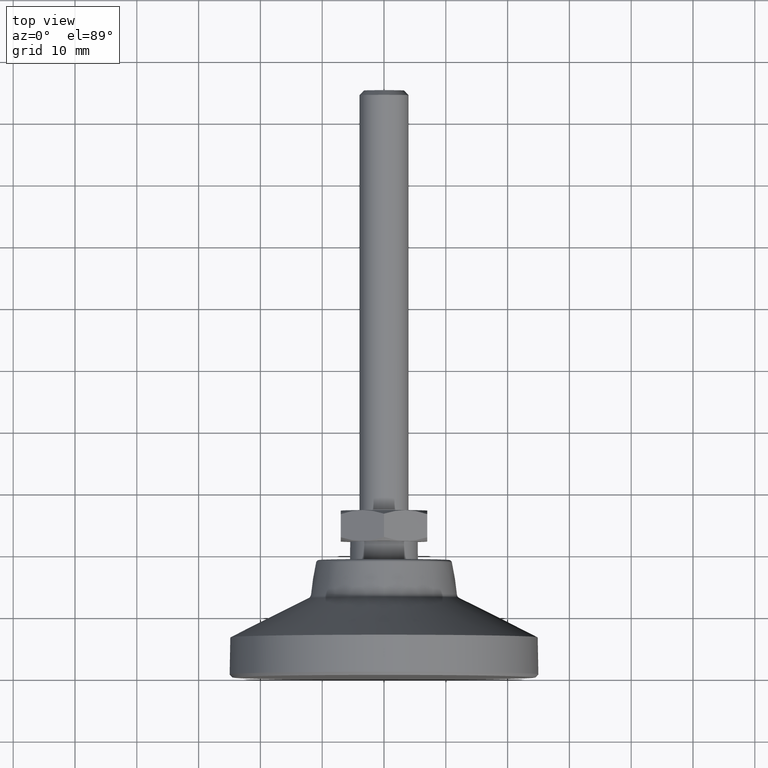
[diagram: clean part render]
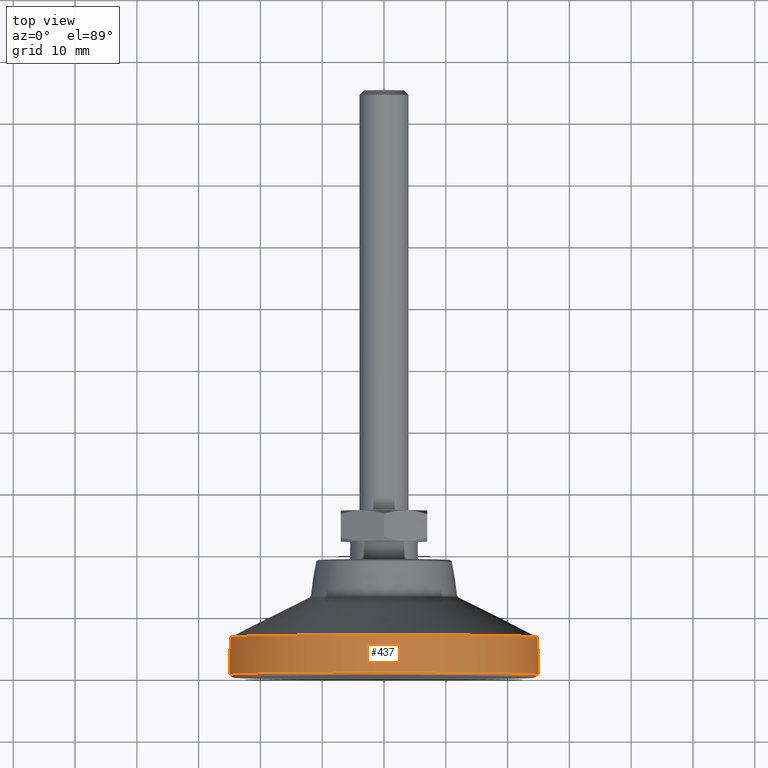
[diagram: same view with one face highlighted and labeled with its STEP entity id]
A machine part, top view. The second image highlights one B-rep face of the part: STEP entity #437.
In plain terms, the highlighted conical surface has half-angle 1 deg.
Its self-contained STEP definition (entity closure, byte-faithful):
#68=CONICAL_SURFACE('',#483,24.8952696104307,0.0174532925199432);
#96=FACE_BOUND('',#153,.T.);
#111=FACE_OUTER_BOUND('',#152,.T.);
#152=EDGE_LOOP('',(#320));
#153=EDGE_LOOP('',(#321));
#193=CIRCLE('',#482,24.8952696104307);
#194=CIRCLE('',#484,25.);
#219=VERTEX_POINT('',#693);
#220=VERTEX_POINT('',#696);
#257=EDGE_CURVE('',#219,#219,#193,.T.);
#258=EDGE_CURVE('',#220,#220,#194,.T.);
#320=ORIENTED_EDGE('',*,*,#258,.F.);
#321=ORIENTED_EDGE('',*,*,#257,.T.);
#437=ADVANCED_FACE('',(#111,#96),#68,.T.);
#482=AXIS2_PLACEMENT_3D('',#694,#564,#565);
#483=AXIS2_PLACEMENT_3D('',#695,#566,#567);
#484=AXIS2_PLACEMENT_3D('',#697,#568,#569);
#564=DIRECTION('center_axis',(0.,-1.,0.));
#565=DIRECTION('ref_axis',(0.,0.,-1.));
#566=DIRECTION('center_axis',(0.,-1.,0.));
#567=DIRECTION('ref_axis',(0.,0.,-1.));
#568=DIRECTION('center_axis',(0.,-1.,0.));
#569=DIRECTION('ref_axis',(0.,0.,-1.));
#693=CARTESIAN_POINT('',(0.,6.5,-24.8952696104307));
#694=CARTESIAN_POINT('Origin',(0.,6.5,0.));
#695=CARTESIAN_POINT('Origin',(0.,6.5,0.));
#696=CARTESIAN_POINT('',(0.,0.5,-25.));
#697=CARTESIAN_POINT('Origin',(0.,0.5,0.));